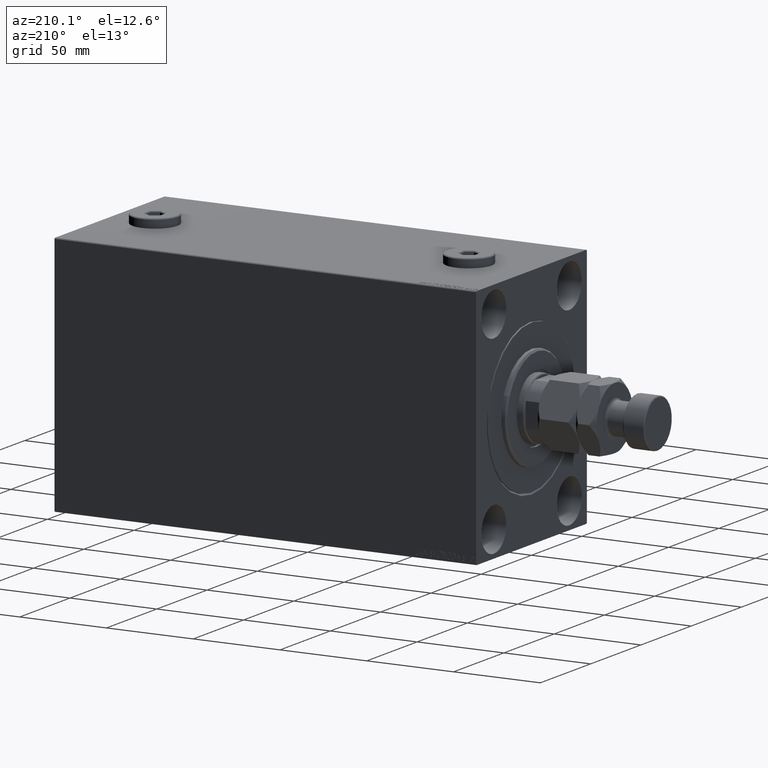
[diagram: clean part render]
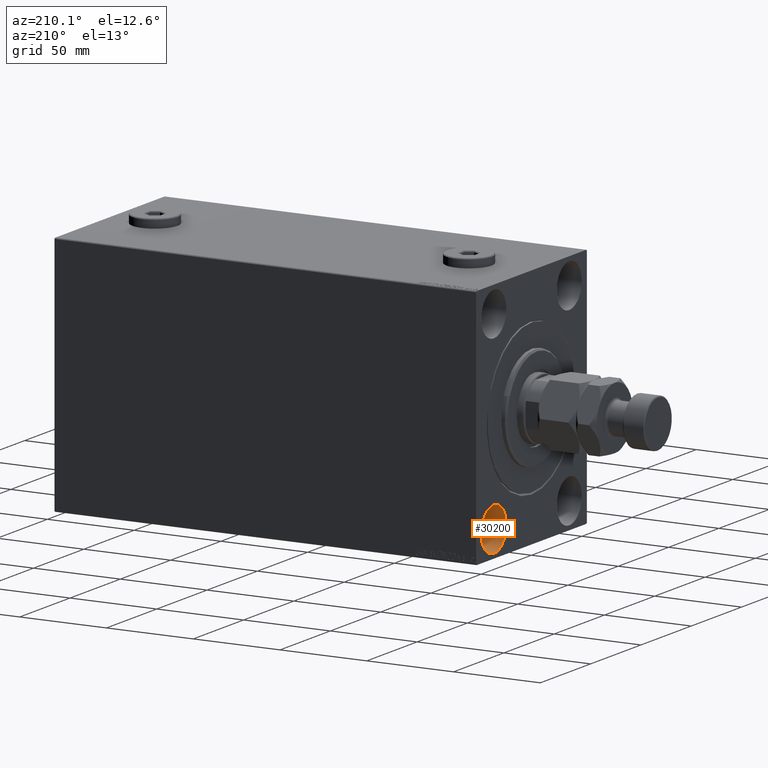
[diagram: same view with one face highlighted and labeled with its STEP entity id]
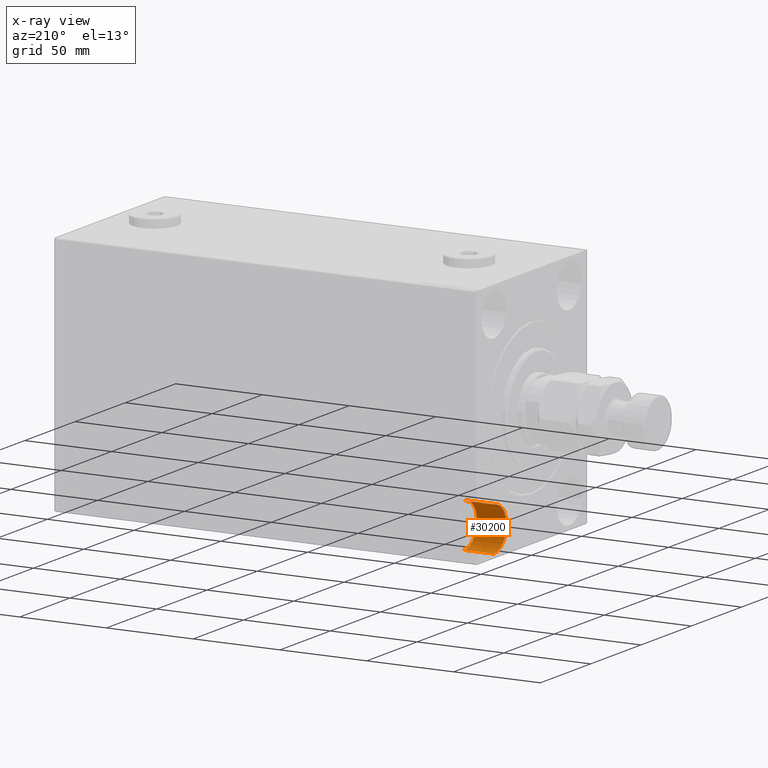
[diagram: x-ray of the same camera — body ghosted, the highlighted face saturated]
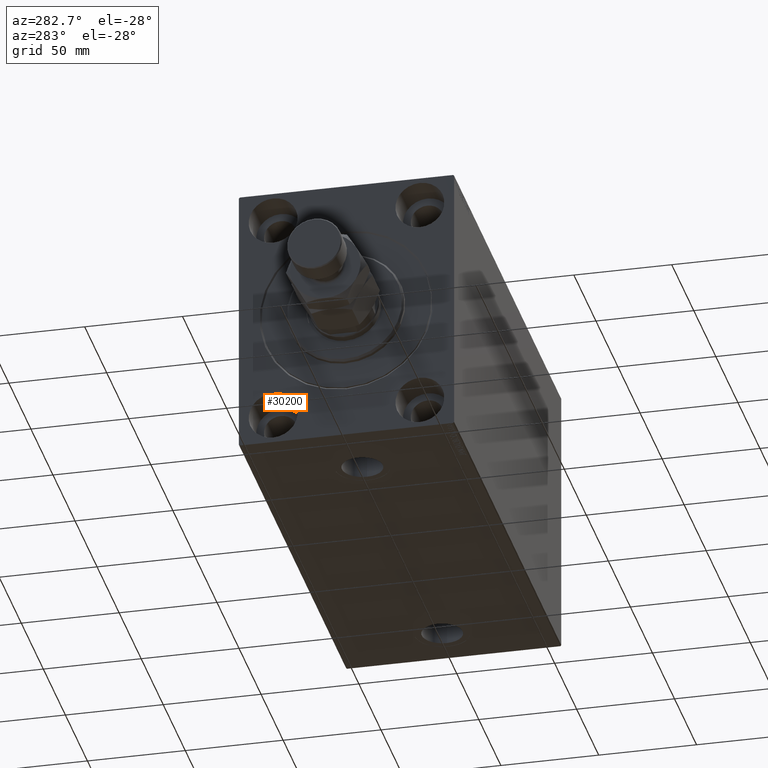
[diagram: same view with one face highlighted and labeled with its STEP entity id]
A machine part, auxiliary view. The second image highlights one B-rep face of the part: STEP entity #30200.
The next image is the same camera in x-ray: the body ghosted, the highlighted face saturated — about 0% of this face is hidden behind the body in this view.
A second angle (auxiliary view) of the same face is appended — the face is thin or edge-on in the first view.
In plain terms, the highlighted cylindrical surface (edge-blend (fillet) strip) has radius 12.5 mm, axis along (-1, -0, -0).
Its self-contained STEP definition (entity closure, byte-faithful):
#490 = CIRCLE ( 'NONE', #33209, 12.49999999999999645 ) ;
#2017 = LINE ( 'NONE', #45312, #24897 ) ;
#3299 = CARTESIAN_POINT ( 'NONE',  ( 17.00000000000000000, 37.49999999999997868, -67.49999999999998579 ) ) ;
#4114 = DIRECTION ( 'NONE',  ( 0.000000000000000000, 0.000000000000000000, 1.000000000000000000 ) ) ;
#4177 = CARTESIAN_POINT ( 'NONE',  ( 17.00000000000000000, 37.49999999999997868, -42.49999999999999289 ) ) ;
#5326 = ORIENTED_EDGE ( 'NONE', *, *, #15263, .T. ) ;
#5723 = VERTEX_POINT ( 'NONE', #25422 ) ;
#7365 = ORIENTED_EDGE ( 'NONE', *, *, #19613, .F. ) ;
#8683 = DIRECTION ( 'NONE',  ( -1.000000000000000000, -0.000000000000000000, -0.000000000000000000 ) ) ;
#10473 = AXIS2_PLACEMENT_3D ( 'NONE', #45314, #44845, #33906 ) ;
#11478 = AXIS2_PLACEMENT_3D ( 'NONE', #28496, #36066, #24924 ) ;
#15263 = EDGE_CURVE ( 'NONE', #27541, #5723, #36548, .T. ) ;
#18721 = DIRECTION ( 'NONE',  ( -1.000000000000000000, -0.000000000000000000, -0.000000000000000000 ) ) ;
#19613 = EDGE_CURVE ( 'NONE', #40134, #5723, #36770, .T. ) ;
#20162 = EDGE_LOOP ( 'NONE', ( #21956, #30719, #5326, #7365 ) ) ;
#21956 = ORIENTED_EDGE ( 'NONE', *, *, #24120, .F. ) ;
#22218 = DIRECTION ( 'NONE',  ( -1.000000000000000000, 0.000000000000000000, 0.000000000000000000 ) ) ;
#22987 = CARTESIAN_POINT ( 'NONE',  ( 17.00000000000000000, 37.49999999999997868, -42.49999999999999289 ) ) ;
#24120 = EDGE_CURVE ( 'NONE', #34632, #40134, #490, .T. ) ;
#24897 = VECTOR ( 'NONE', #8683, 1000.000000000000000 ) ;
#24924 = DIRECTION ( 'NONE',  ( 0.000000000000000000, 0.000000000000000000, 1.000000000000000000 ) ) ;
#25422 = CARTESIAN_POINT ( 'NONE',  ( 0.000000000000000000, 37.49999999999997868, -42.49999999999999289 ) ) ;
#25791 = CARTESIAN_POINT ( 'NONE',  ( 17.00000000000000000, 37.49999999999997868, -54.99999999999999289 ) ) ;
#27541 = VERTEX_POINT ( 'NONE', #28378 ) ;
#27860 = EDGE_CURVE ( 'NONE', #34632, #27541, #2017, .T. ) ;
#28378 = CARTESIAN_POINT ( 'NONE',  ( 0.000000000000000000, 37.49999999999997868, -67.49999999999998579 ) ) ;
#28496 = CARTESIAN_POINT ( 'NONE',  ( 0.000000000000000000, 37.49999999999997868, -54.99999999999999289 ) ) ;
#30200 = ADVANCED_FACE ( 'NONE', ( #30817 ), #45082, .F. ) ;
#30719 = ORIENTED_EDGE ( 'NONE', *, *, #27860, .T. ) ;
#30817 = FACE_OUTER_BOUND ( 'NONE', #20162, .T. ) ;
#33209 = AXIS2_PLACEMENT_3D ( 'NONE', #25791, #22218, #4114 ) ;
#33906 = DIRECTION ( 'NONE',  ( 0.000000000000000000, 0.000000000000000000, 1.000000000000000000 ) ) ;
#34632 = VERTEX_POINT ( 'NONE', #3299 ) ;
#36066 = DIRECTION ( 'NONE',  ( -1.000000000000000000, 0.000000000000000000, 0.000000000000000000 ) ) ;
#36548 = CIRCLE ( 'NONE', #11478, 12.49999999999999645 ) ;
#36770 = LINE ( 'NONE', #4177, #42980 ) ;
#40134 = VERTEX_POINT ( 'NONE', #22987 ) ;
#42980 = VECTOR ( 'NONE', #18721, 1000.000000000000000 ) ;
#44845 = DIRECTION ( 'NONE',  ( -1.000000000000000000, -0.000000000000000000, -0.000000000000000000 ) ) ;
#45082 = CYLINDRICAL_SURFACE ( 'NONE', #10473, 12.49999999999999645 ) ;
#45312 = CARTESIAN_POINT ( 'NONE',  ( 17.00000000000000000, 37.49999999999997868, -67.49999999999998579 ) ) ;
#45314 = CARTESIAN_POINT ( 'NONE',  ( 17.00000000000000000, 37.49999999999997868, -54.99999999999999289 ) ) ;